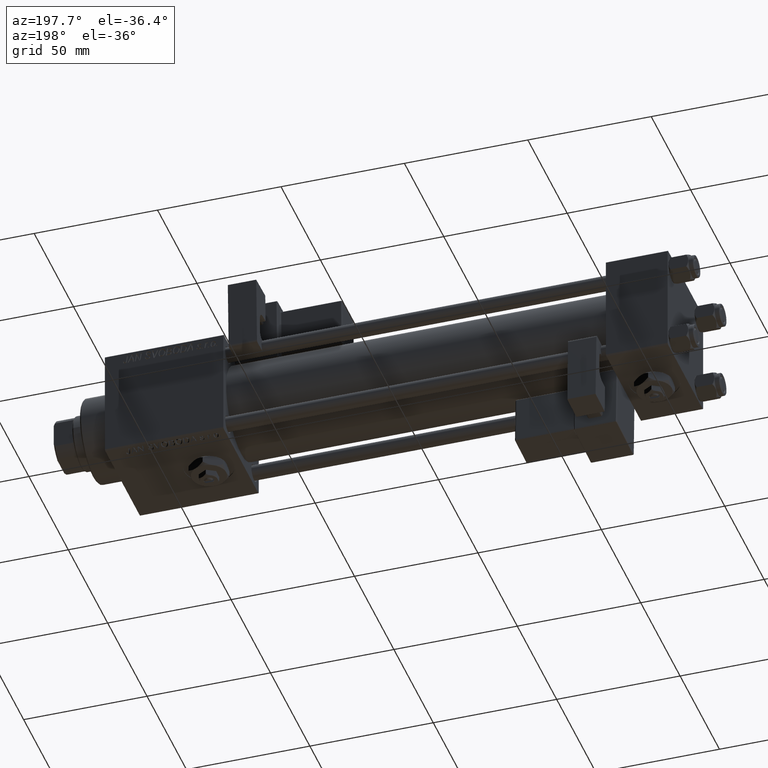
[diagram: clean part render]
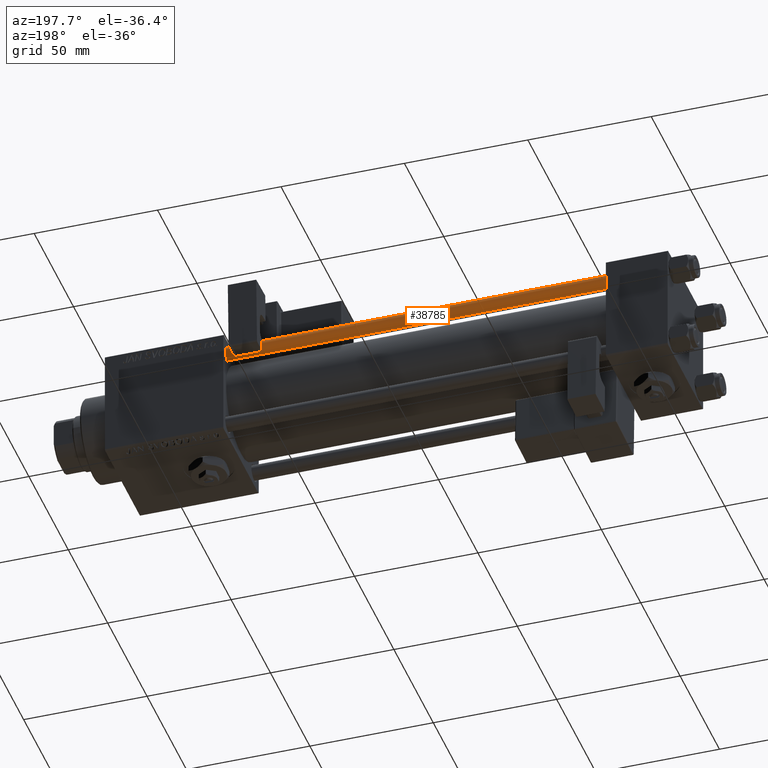
[diagram: same view with one face highlighted and labeled with its STEP entity id]
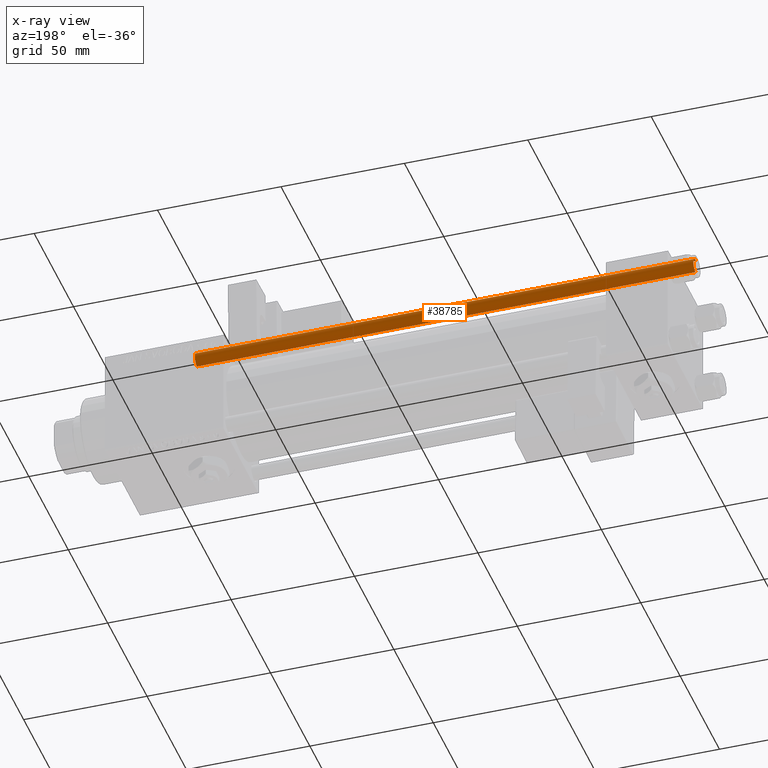
[diagram: x-ray of the same camera — body ghosted, the highlighted face saturated]
A machine part, auxiliary view. The second image highlights one B-rep face of the part: STEP entity #38785.
The next image is the same camera in x-ray: the body ghosted, the highlighted face saturated — about 0% of this face is hidden behind the body in this view.
In plain terms, the highlighted cylindrical surface (edge-blend (fillet) strip) has radius 3 mm, axis along (-1, 0, 0).
Its self-contained STEP definition (entity closure, byte-faithful):
#861 = VECTOR ( 'NONE', #20319, 1000.000000000000000 ) ;
#1579 = AXIS2_PLACEMENT_3D ( 'NONE', #12202, #46331, #25752 ) ;
#2961 = FACE_OUTER_BOUND ( 'NONE', #48218, .T. ) ;
#3686 = ORIENTED_EDGE ( 'NONE', *, *, #35032, .T. ) ;
#5213 = ORIENTED_EDGE ( 'NONE', *, *, #16756, .T. ) ;
#6741 = EDGE_CURVE ( 'NONE', #17822, #18032, #42091, .T. ) ;
#9571 = CARTESIAN_POINT ( 'NONE',  ( 3.000000000000000444, 3.673940397442059868E-16, 0.5000000000001114664 ) ) ;
#12202 = CARTESIAN_POINT ( 'NONE',  ( 0.000000000000000000, 0.000000000000000000, 0.5000000000001114664 ) ) ;
#14222 = CARTESIAN_POINT ( 'NONE',  ( -3.000000000000000444, 0.000000000000000000, 203.0000000000000000 ) ) ;
#15161 = CIRCLE ( 'NONE', #33141, 3.000000000000000444 ) ;
#16756 = EDGE_CURVE ( 'NONE', #44324, #17822, #50492, .T. ) ;
#17822 = VERTEX_POINT ( 'NONE', #9571 ) ;
#18032 = VERTEX_POINT ( 'NONE', #27879 ) ;
#20319 = DIRECTION ( 'NONE',  ( -0.000000000000000000, -0.000000000000000000, -1.000000000000000000 ) ) ;
#20652 = CARTESIAN_POINT ( 'NONE',  ( 3.000000000000000444, 3.673940397442059868E-16, 202.5000000000000853 ) ) ;
#22948 = DIRECTION ( 'NONE',  ( -0.000000000000000000, -0.000000000000000000, -1.000000000000000000 ) ) ;
#24325 = CARTESIAN_POINT ( 'NONE',  ( 0.000000000000000000, 0.000000000000000000, 202.5000000000000853 ) ) ;
#25752 = DIRECTION ( 'NONE',  ( 1.000000000000000000, 0.000000000000000000, 0.000000000000000000 ) ) ;
#27879 = CARTESIAN_POINT ( 'NONE',  ( -3.000000000000000444, 0.000000000000000000, 0.5000000000001114664 ) ) ;
#28291 = VECTOR ( 'NONE', #22948, 1000.000000000000000 ) ;
#30868 = LINE ( 'NONE', #14222, #28291 ) ;
#33131 = DIRECTION ( 'NONE',  ( -1.000000000000000000, 0.000000000000000000, 0.000000000000000000 ) ) ;
#33141 = AXIS2_PLACEMENT_3D ( 'NONE', #24325, #37309, #38151 ) ;
#33202 = VERTEX_POINT ( 'NONE', #48227 ) ;
#33978 = DIRECTION ( 'NONE',  ( -0.000000000000000000, -0.000000000000000000, -1.000000000000000000 ) ) ;
#35032 = EDGE_CURVE ( 'NONE', #33202, #44324, #15161, .T. ) ;
#37309 = DIRECTION ( 'NONE',  ( 0.000000000000000000, 0.000000000000000000, -1.000000000000000000 ) ) ;
#38151 = DIRECTION ( 'NONE',  ( 1.000000000000000000, 0.000000000000000000, 0.000000000000000000 ) ) ;
#38785 = ADVANCED_FACE ( 'NONE', ( #2961 ), #42159, .T. ) ;
#41607 = CARTESIAN_POINT ( 'NONE',  ( 0.000000000000000000, 0.000000000000000000, 203.0000000000000000 ) ) ;
#42091 = CIRCLE ( 'NONE', #1579, 3.000000000000000444 ) ;
#42159 = CYLINDRICAL_SURFACE ( 'NONE', #54930, 3.000000000000000444 ) ;
#44324 = VERTEX_POINT ( 'NONE', #20652 ) ;
#45982 = CARTESIAN_POINT ( 'NONE',  ( 3.000000000000000444, 3.673940397442059868E-16, 203.0000000000000000 ) ) ;
#46331 = DIRECTION ( 'NONE',  ( -0.000000000000000000, -0.000000000000000000, 1.000000000000000000 ) ) ;
#46961 = ORIENTED_EDGE ( 'NONE', *, *, #6741, .T. ) ;
#48218 = EDGE_LOOP ( 'NONE', ( #3686, #5213, #46961, #51808 ) ) ;
#48227 = CARTESIAN_POINT ( 'NONE',  ( -3.000000000000000444, 0.000000000000000000, 202.5000000000000853 ) ) ;
#50492 = LINE ( 'NONE', #45982, #861 ) ;
#51808 = ORIENTED_EDGE ( 'NONE', *, *, #51893, .F. ) ;
#51893 = EDGE_CURVE ( 'NONE', #33202, #18032, #30868, .T. ) ;
#54930 = AXIS2_PLACEMENT_3D ( 'NONE', #41607, #33978, #33131 ) ;